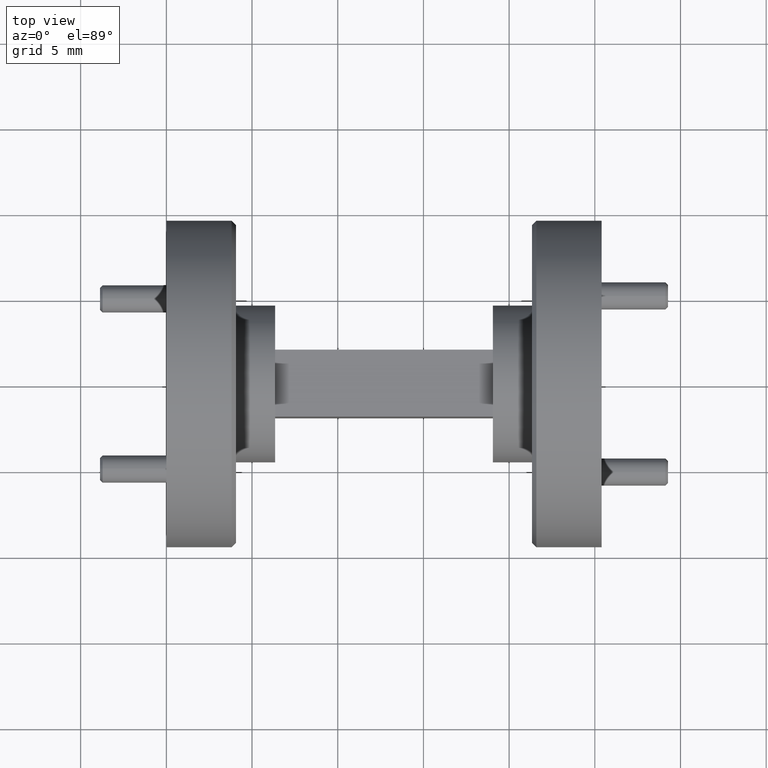
[diagram: clean part render]
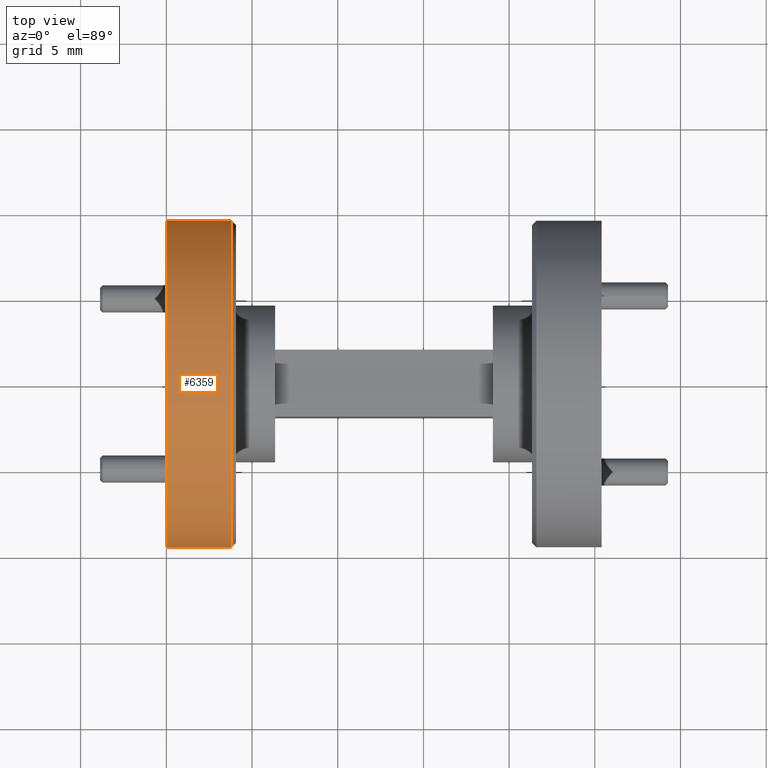
[diagram: same view with one face highlighted and labeled with its STEP entity id]
A machine part, top view. The second image highlights one B-rep face of the part: STEP entity #6359.
In plain terms, the highlighted cylindrical surface (partial cylindrical patch) has radius 9.525 mm, axis along (1, 0, -0).
Its self-contained STEP definition (entity closure, byte-faithful):
#6 = AXIS2_PLACEMENT_3D ( 'NONE', #7156, #384, #2639 ) ;
#38 = DIRECTION ( 'NONE',  ( 1.000000000000000000, 1.224646799147353454E-16, -0.000000000000000000 ) ) ;
#384 = DIRECTION ( 'NONE',  ( 1.000000000000000000, 1.224646799147353454E-16, -0.000000000000000000 ) ) ;
#452 = ORIENTED_EDGE ( 'NONE', *, *, #6243, .T. ) ;
#528 = EDGE_CURVE ( 'NONE', #4613, #2203, #2173, .T. ) ;
#588 = CARTESIAN_POINT ( 'NONE',  ( -1.862448192378166163E-13, -0.3749999999999996669, 4.592425496802570521E-17 ) ) ;
#968 = EDGE_CURVE ( 'NONE', #6598, #4613, #5665, .T. ) ;
#1096 = VECTOR ( 'NONE', #1744, 39.37007874015748143 ) ;
#1324 = CARTESIAN_POINT ( 'NONE',  ( 0.1499999999999996614, -0.3749999999999996669, 4.592425496802570521E-17 ) ) ;
#1485 = DIRECTION ( 'NONE',  ( -1.000000000000000000, -1.224646799147351728E-16, 0.000000000000000000 ) ) ;
#1744 = DIRECTION ( 'NONE',  ( 1.000000000000000000, 1.224646799147353454E-16, -0.000000000000000000 ) ) ;
#1843 = LINE ( 'NONE', #3555, #1096 ) ;
#2173 = CIRCLE ( 'NONE', #6337, 0.3749999999999996669 ) ;
#2193 = EDGE_CURVE ( 'NONE', #6759, #2203, #1843, .T. ) ;
#2203 = VERTEX_POINT ( 'NONE', #5816 ) ;
#2376 = AXIS2_PLACEMENT_3D ( 'NONE', #3382, #2843, #3877 ) ;
#2478 = CIRCLE ( 'NONE', #6, 0.3749999999999997780 ) ;
#2579 = CARTESIAN_POINT ( 'NONE',  ( -1.248821503309361190E-29, 0.3749999999999997780, 0.000000000000000000 ) ) ;
#2639 = DIRECTION ( 'NONE',  ( -1.224646799147353454E-16, 1.000000000000000000, 0.000000000000000000 ) ) ;
#2689 = CYLINDRICAL_SURFACE ( 'NONE', #2376, 0.3749999999999996669 ) ;
#2795 = CARTESIAN_POINT ( 'NONE',  ( 9.184850993603896121E-17, -0.3749999999999997780, 4.592425496802571754E-17 ) ) ;
#2843 = DIRECTION ( 'NONE',  ( 1.000000000000000000, 1.224646799147353454E-16, -0.000000000000000000 ) ) ;
#3382 = CARTESIAN_POINT ( 'NONE',  ( -1.862907434927846262E-13, -5.755786505608412837E-19, 0.000000000000000000 ) ) ;
#3555 = CARTESIAN_POINT ( 'NONE',  ( -1.863366677477526361E-13, 0.3749999999999996669, 0.000000000000000000 ) ) ;
#3877 = DIRECTION ( 'NONE',  ( -1.224646799147020653E-16, 1.000000000000000000, 0.000000000000000000 ) ) ;
#4613 = VERTEX_POINT ( 'NONE', #1324 ) ;
#4850 = EDGE_LOOP ( 'NONE', ( #452, #6514, #6274, #6496 ) ) ;
#5015 = FACE_OUTER_BOUND ( 'NONE', #4850, .T. ) ;
#5384 = VECTOR ( 'NONE', #38, 39.37007874015748143 ) ;
#5665 = LINE ( 'NONE', #588, #5384 ) ;
#5816 = CARTESIAN_POINT ( 'NONE',  ( 0.1499999999999995504, 0.3749999999999996669, 0.000000000000000000 ) ) ;
#6243 = EDGE_CURVE ( 'NONE', #6759, #6598, #2478, .T. ) ;
#6274 = ORIENTED_EDGE ( 'NONE', *, *, #528, .T. ) ;
#6337 = AXIS2_PLACEMENT_3D ( 'NONE', #7221, #1485, #6530 ) ;
#6359 = ADVANCED_FACE ( 'NONE', ( #5015 ), #2689, .T. ) ;
#6496 = ORIENTED_EDGE ( 'NONE', *, *, #2193, .F. ) ;
#6514 = ORIENTED_EDGE ( 'NONE', *, *, #968, .T. ) ;
#6530 = DIRECTION ( 'NONE',  ( -1.365923996832132842E-16, 1.000000000000000000, 0.000000000000000000 ) ) ;
#6598 = VERTEX_POINT ( 'NONE', #2795 ) ;
#6759 = VERTEX_POINT ( 'NONE', #2579 ) ;
#7156 = CARTESIAN_POINT ( 'NONE',  ( 4.592425496801323135E-17, -5.755786505380216139E-19, 0.000000000000000000 ) ) ;
#7221 = CARTESIAN_POINT ( 'NONE',  ( 0.1499999999999996059, 1.779412333667222600E-17, 0.000000000000000000 ) ) ;